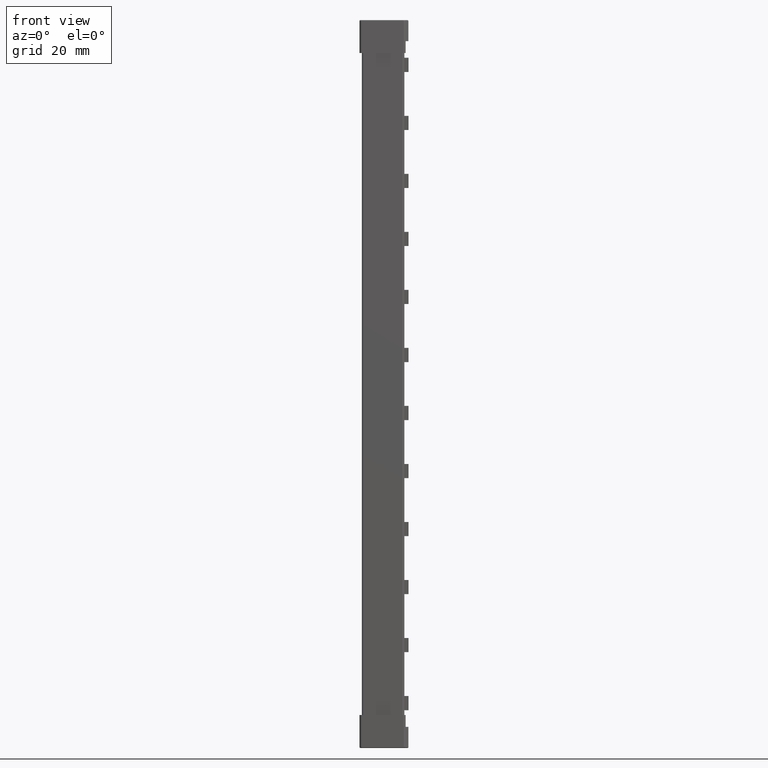
[diagram: clean part render]
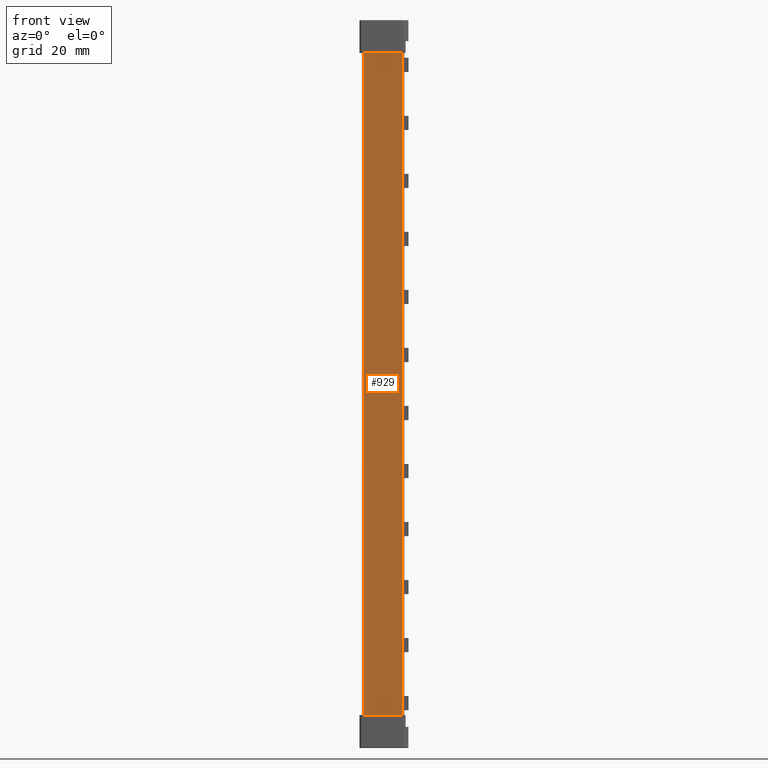
[diagram: same view with one face highlighted and labeled with its STEP entity id]
A machine part, front view. The second image highlights one B-rep face of the part: STEP entity #929.
In plain terms, the highlighted planar face has unit normal (-0, 1, 0).
Its self-contained STEP definition (entity closure, byte-faithful):
#929 = ADVANCED_FACE ( 'NONE', ( #12244 ), #12283, .F. ) ;
#3809 = AXIS2_PLACEMENT_3D ( 'NONE', #12279, #12310, #12305 ) ;
#7201 = EDGE_CURVE ( 'NONE', #18735, #18843, #9452, .T. ) ;
#7231 = EDGE_CURVE ( 'NONE', #18763, #18760, #9545, .T. ) ;
#7235 = EDGE_CURVE ( 'NONE', #18760, #18735, #9549, .T. ) ;
#7240 = EDGE_CURVE ( 'NONE', #18843, #18763, #9610, .T. ) ;
#7963 = CARTESIAN_POINT ( 'NONE',  ( 3.541439447364635600E-009, 5.643074565432898700E-014, 209.9000000000000100 ) ) ;
#7967 = CARTESIAN_POINT ( 'NONE',  ( 11.80192812978782700, 1.341396428036907800E-007, 9.099999999999903700 ) ) ;
#7968 = CARTESIAN_POINT ( 'NONE',  ( 11.80192812936247500, 1.341396427988562300E-007, 209.9000000000000100 ) ) ;
#8037 = CARTESIAN_POINT ( 'NONE',  ( 5.682952451893912000E-009, 5.567653173556576100E-014, 9.099999999999955200 ) ) ;
#9452 = LINE ( 'NONE', #9490, #21177 ) ;
#9489 = DIRECTION ( 'NONE',  ( -0.9999999999999998900, -1.136590436583420100E-008, 0.0000000000000000000 ) ) ;
#9490 = CARTESIAN_POINT ( 'NONE',  ( 0.0000000000000000000, 5.551115123125782700E-014, 9.099999999999802500 ) ) ;
#9545 = LINE ( 'NONE', #9569, #21367 ) ;
#9549 = LINE ( 'NONE', #9572, #21285 ) ;
#9569 = CARTESIAN_POINT ( 'NONE',  ( 0.0000000000000000000, 5.551115123125782700E-014, 209.9000000000000100 ) ) ;
#9571 = DIRECTION ( 'NONE',  ( 0.9999999999999998900, 1.136590436583420100E-008, -0.0000000000000000000 ) ) ;
#9572 = CARTESIAN_POINT ( 'NONE',  ( 11.80192812978782500, 1.341396419667681500E-007, 219.0000000000000000 ) ) ;
#9592 = CARTESIAN_POINT ( 'NONE',  ( 5.682952372793375400E-009, 5.557574312444257900E-014, 219.0000000000000000 ) ) ;
#9609 = DIRECTION ( 'NONE',  ( -0.0000000000000000000, -0.0000000000000000000, -1.000000000000000000 ) ) ;
#9610 = LINE ( 'NONE', #9592, #21260 ) ;
#9637 = DIRECTION ( 'NONE',  ( 0.0000000000000000000, 0.0000000000000000000, 1.000000000000000000 ) ) ;
#12244 = FACE_OUTER_BOUND ( 'NONE', #20539, .T. ) ;
#12279 = CARTESIAN_POINT ( 'NONE',  ( 0.0000000000000000000, 5.551115123125782700E-014, 219.0000000000000000 ) ) ;
#12283 = PLANE ( 'NONE',  #3809 ) ;
#12305 = DIRECTION ( 'NONE',  ( -0.9999999999999998900, -1.136590436583420100E-008, 0.0000000000000000000 ) ) ;
#12310 = DIRECTION ( 'NONE',  ( -1.136590436583420300E-008, 1.000000000000000000, 0.0000000000000000000 ) ) ;
#15614 = ORIENTED_EDGE ( 'NONE', *, *, #7235, .F. ) ;
#15630 = ORIENTED_EDGE ( 'NONE', *, *, #7201, .F. ) ;
#15631 = ORIENTED_EDGE ( 'NONE', *, *, #7231, .F. ) ;
#15632 = ORIENTED_EDGE ( 'NONE', *, *, #7240, .F. ) ;
#18735 = VERTEX_POINT ( 'NONE', #7967 ) ;
#18760 = VERTEX_POINT ( 'NONE', #7968 ) ;
#18763 = VERTEX_POINT ( 'NONE', #7963 ) ;
#18843 = VERTEX_POINT ( 'NONE', #8037 ) ;
#20539 = EDGE_LOOP ( 'NONE', ( #15631, #15632, #15630, #15614 ) ) ;
#21177 = VECTOR ( 'NONE', #9489, 1000.000000000000100 ) ;
#21260 = VECTOR ( 'NONE', #9637, 1000.000000000000000 ) ;
#21285 = VECTOR ( 'NONE', #9609, 1000.000000000000000 ) ;
#21367 = VECTOR ( 'NONE', #9571, 1000.000000000000100 ) ;